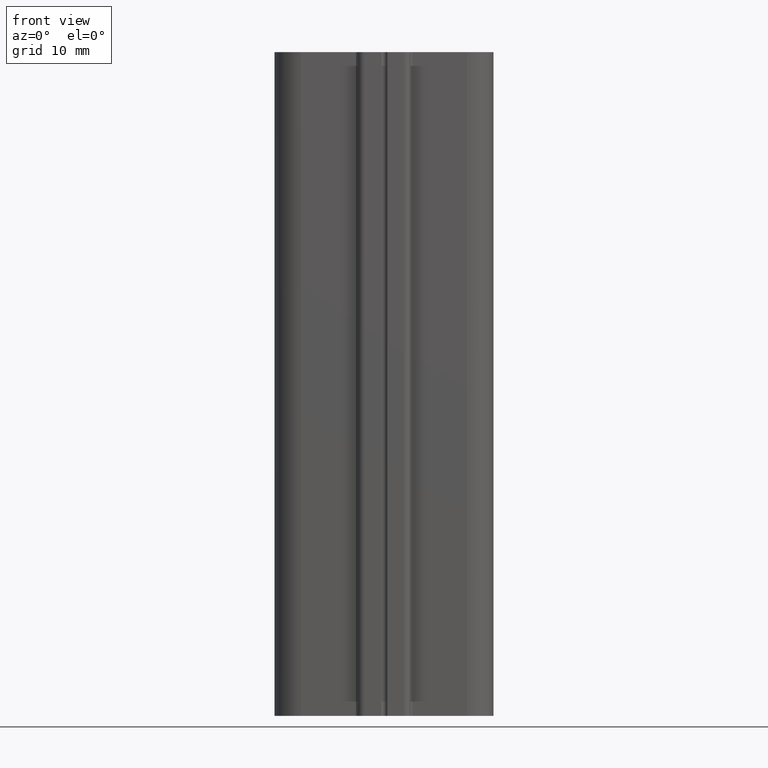
[diagram: clean part render]
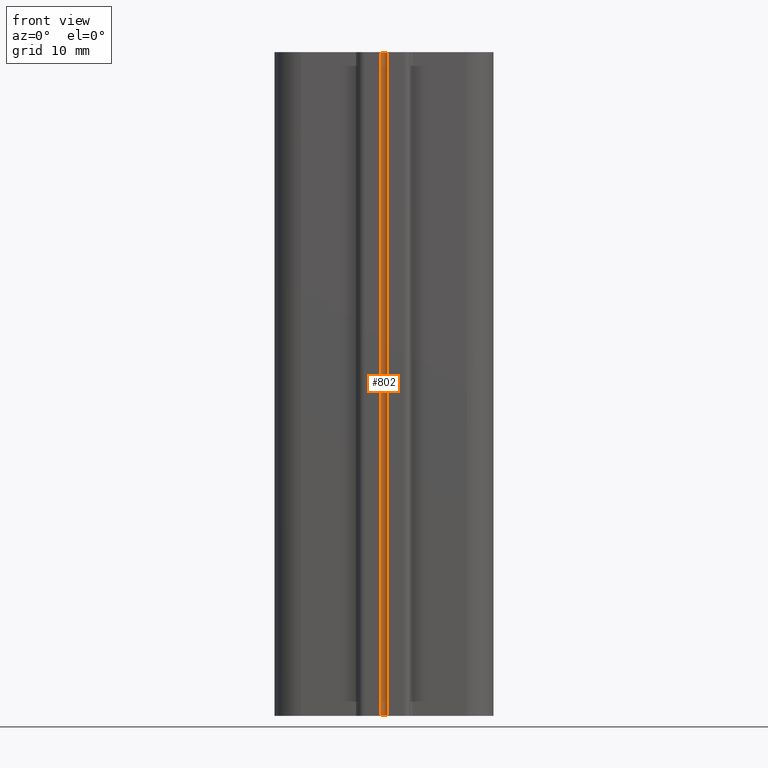
[diagram: same view with one face highlighted and labeled with its STEP entity id]
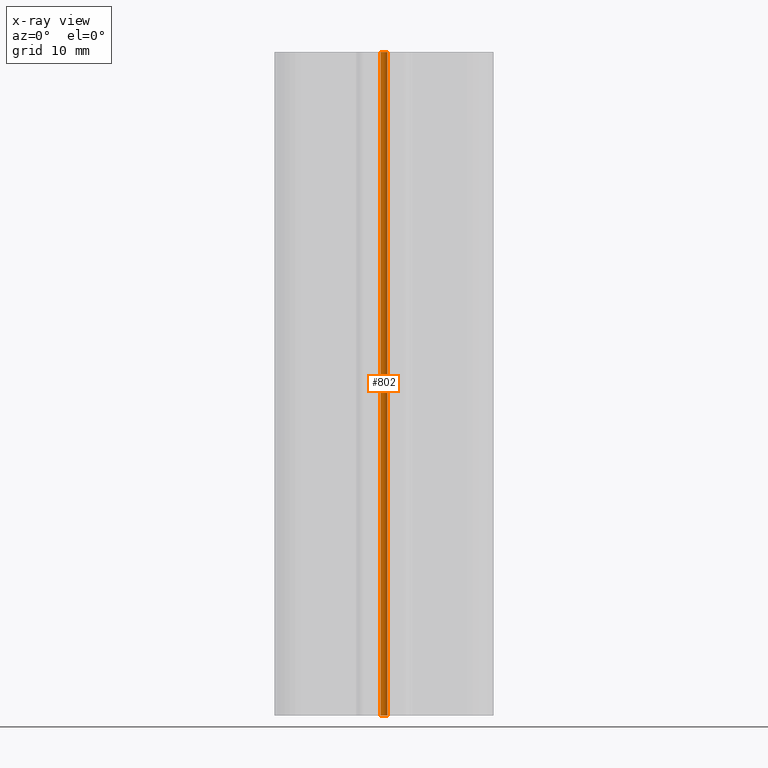
[diagram: x-ray of the same camera — body ghosted, the highlighted face saturated]
A machine part, front view. The second image highlights one B-rep face of the part: STEP entity #802.
The next image is the same camera in x-ray: the body ghosted, the highlighted face saturated — about 0% of this face is hidden behind the body in this view.
In plain terms, the highlighted cylindrical surface (edge-blend (fillet) strip) has radius 0.5 mm, axis along (0, 0, 1).
Its self-contained STEP definition (entity closure, byte-faithful):
#44=CYLINDRICAL_SURFACE('',#950,0.5);
#79=FACE_OUTER_BOUND('',#122,.T.);
#122=EDGE_LOOP('',(#669,#670,#671,#672));
#153=CIRCLE('',#900,0.5);
#175=CIRCLE('',#951,0.5);
#237=LINE('',#1425,#308);
#238=LINE('',#1429,#309);
#308=VECTOR('',#1169,10.);
#309=VECTOR('',#1174,10.);
#353=VERTEX_POINT('',#1293);
#354=VERTEX_POINT('',#1295);
#390=VERTEX_POINT('',#1423);
#391=VERTEX_POINT('',#1427);
#431=EDGE_CURVE('',#353,#354,#153,.T.);
#496=EDGE_CURVE('',#353,#390,#237,.T.);
#497=EDGE_CURVE('',#391,#390,#175,.T.);
#498=EDGE_CURVE('',#354,#391,#238,.T.);
#669=ORIENTED_EDGE('',*,*,#496,.T.);
#670=ORIENTED_EDGE('',*,*,#497,.F.);
#671=ORIENTED_EDGE('',*,*,#498,.F.);
#672=ORIENTED_EDGE('',*,*,#431,.F.);
#802=ADVANCED_FACE('',(#79),#44,.F.);
#900=AXIS2_PLACEMENT_3D('',#1296,#1026,#1027);
#950=AXIS2_PLACEMENT_3D('',#1426,#1170,#1171);
#951=AXIS2_PLACEMENT_3D('',#1428,#1172,#1173);
#1026=DIRECTION('center_axis',(0.,0.,1.));
#1027=DIRECTION('ref_axis',(-1.,0.,0.));
#1169=DIRECTION('',(0.,0.,1.));
#1170=DIRECTION('center_axis',(0.,0.,1.));
#1171=DIRECTION('ref_axis',(-1.,0.,0.));
#1172=DIRECTION('center_axis',(0.,0.,-1.));
#1173=DIRECTION('ref_axis',(-1.,0.,0.));
#1174=DIRECTION('',(0.,0.,1.));
#1293=CARTESIAN_POINT('',(0.500000000000029,-19.9999999999999,-50.));
#1295=CARTESIAN_POINT('',(-0.499999999999967,-19.9999999999999,-50.));
#1296=CARTESIAN_POINT('Origin',(3.10862446895044E-14,-19.9999999999999,
-50.));
#1423=CARTESIAN_POINT('',(0.500000000000029,-19.9999999999999,50.));
#1425=CARTESIAN_POINT('',(0.500000000000029,-19.9999999999999,0.));
#1426=CARTESIAN_POINT('Origin',(3.10862446895044E-14,-19.9999999999999,
0.));
#1427=CARTESIAN_POINT('',(-0.499999999999967,-19.9999999999999,50.));
#1428=CARTESIAN_POINT('Origin',(3.10862446895044E-14,-19.9999999999999,
50.));
#1429=CARTESIAN_POINT('',(-0.499999999999967,-19.9999999999999,0.));